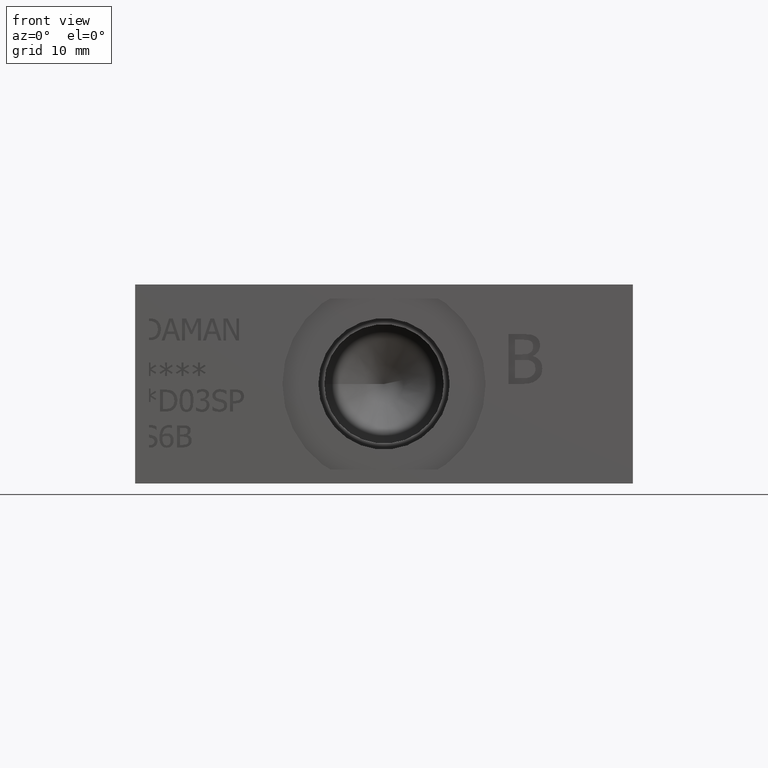
[diagram: clean part render]
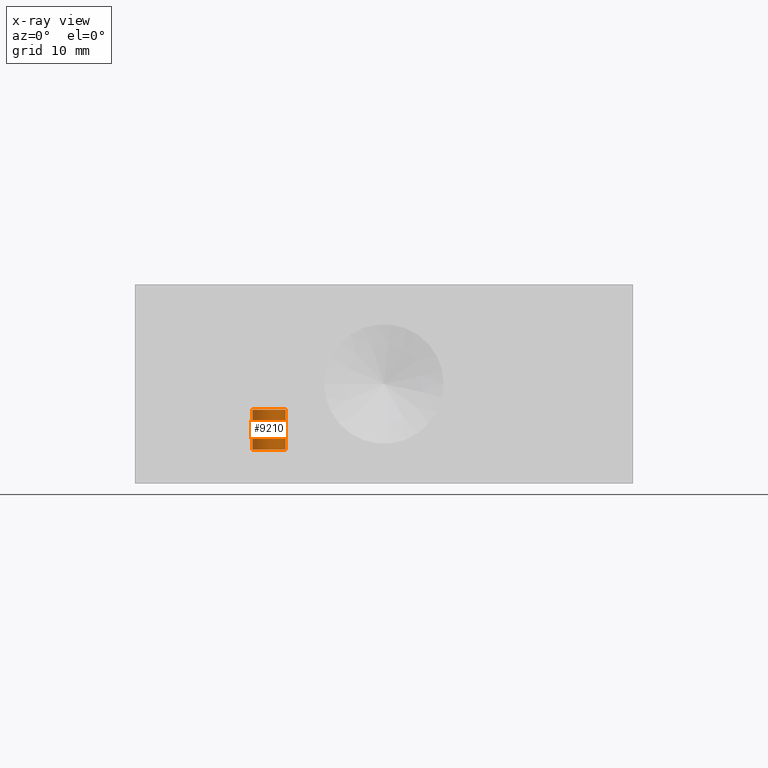
[diagram: x-ray — body ghosted, one internal face saturated and labeled with its STEP entity id]
A machine part, front view, then the same camera in x-ray: the body is ghosted and one INTERNAL B-rep face — a face not visible from any outside direction — is saturated and labeled: STEP entity #9210.
In plain terms, the highlighted cylindrical surface (bore or boss wall) has radius 2.1082 mm, axis along (0, 0, 1).
Its self-contained STEP definition (entity closure, byte-faithful):
#38=CYLINDRICAL_SURFACE('',#9637,2.1082);
#143=CIRCLE('',#9630,2.1082);
#144=CIRCLE('',#9631,2.1082);
#147=CIRCLE('',#9635,2.1082);
#954=FACE_OUTER_BOUND('',#1479,.T.);
#1479=EDGE_LOOP('',(#8149,#8150,#8151,#8152,#8153));
#2374=LINE('',#15804,#3258);
#3258=VECTOR('',#11338,2.1082);
#4394=VERTEX_POINT('',#15788);
#4395=VERTEX_POINT('',#15789);
#4399=VERTEX_POINT('',#15799);
#5656=EDGE_CURVE('',#4394,#4395,#143,.T.);
#5658=EDGE_CURVE('',#4395,#4394,#144,.T.);
#5661=EDGE_CURVE('',#4399,#4399,#147,.T.);
#5663=EDGE_CURVE('',#4399,#4395,#2374,.T.);
#8149=ORIENTED_EDGE('',*,*,#5661,.T.);
#8150=ORIENTED_EDGE('',*,*,#5663,.T.);
#8151=ORIENTED_EDGE('',*,*,#5656,.F.);
#8152=ORIENTED_EDGE('',*,*,#5658,.F.);
#8153=ORIENTED_EDGE('',*,*,#5663,.F.);
#9210=ADVANCED_FACE('',(#954),#38,.F.);
#9630=AXIS2_PLACEMENT_3D('',#15790,#11320,#11321);
#9631=AXIS2_PLACEMENT_3D('',#15793,#11323,#11324);
#9635=AXIS2_PLACEMENT_3D('',#15800,#11331,#11332);
#9637=AXIS2_PLACEMENT_3D('',#15803,#11336,#11337);
#11320=DIRECTION('center_axis',(0.,0.,1.));
#11321=DIRECTION('ref_axis',(1.,0.,0.));
#11323=DIRECTION('center_axis',(0.,0.,1.));
#11324=DIRECTION('ref_axis',(1.,0.,0.));
#11331=DIRECTION('center_axis',(0.,0.,1.));
#11332=DIRECTION('ref_axis',(1.,0.,0.));
#11336=DIRECTION('center_axis',(0.,0.,1.));
#11337=DIRECTION('ref_axis',(1.,0.,0.));
#11338=DIRECTION('',(0.,0.,-1.));
#15788=CARTESIAN_POINT('',(19.177,51.5874,4.318));
#15789=CARTESIAN_POINT('',(14.9606,51.5874,4.318));
#15790=CARTESIAN_POINT('Origin',(17.0688,51.5874,4.318));
#15793=CARTESIAN_POINT('Origin',(17.0688,51.5874,4.318));
#15799=CARTESIAN_POINT('',(14.9606,51.5874,9.398));
#15800=CARTESIAN_POINT('Origin',(17.0688,51.5874,9.398));
#15803=CARTESIAN_POINT('Origin',(17.0688,51.5874,14.859));
#15804=CARTESIAN_POINT('',(14.9606,51.5874,14.859));